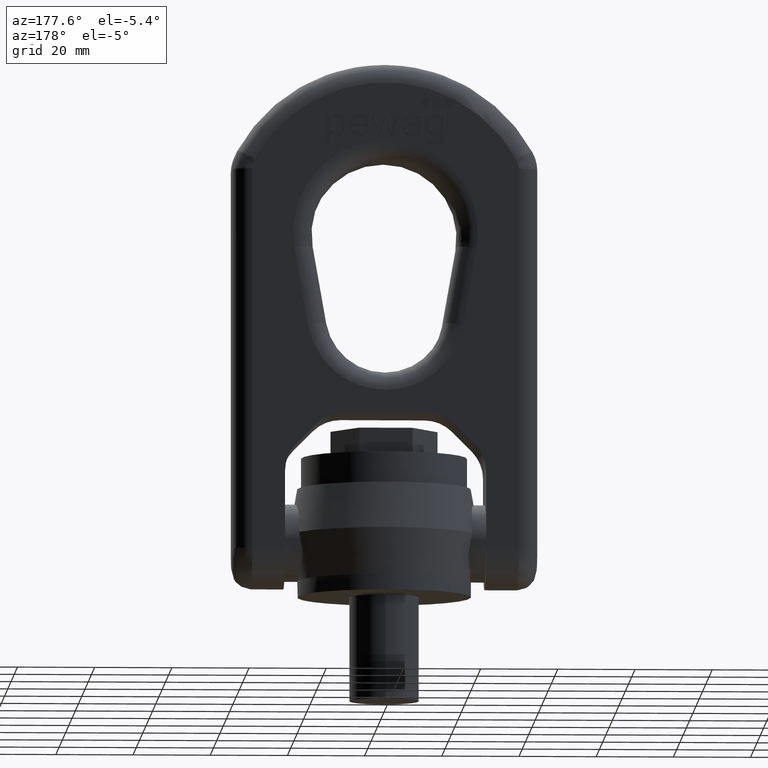
[diagram: clean part render]
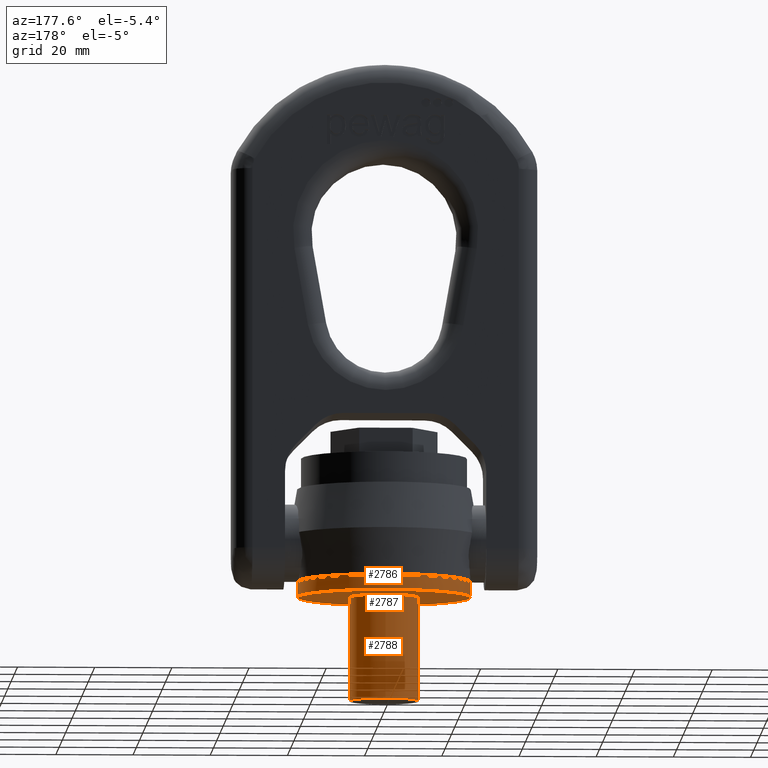
[diagram: same view with one multi-face feature highlighted, each face labeled with its STEP entity id]
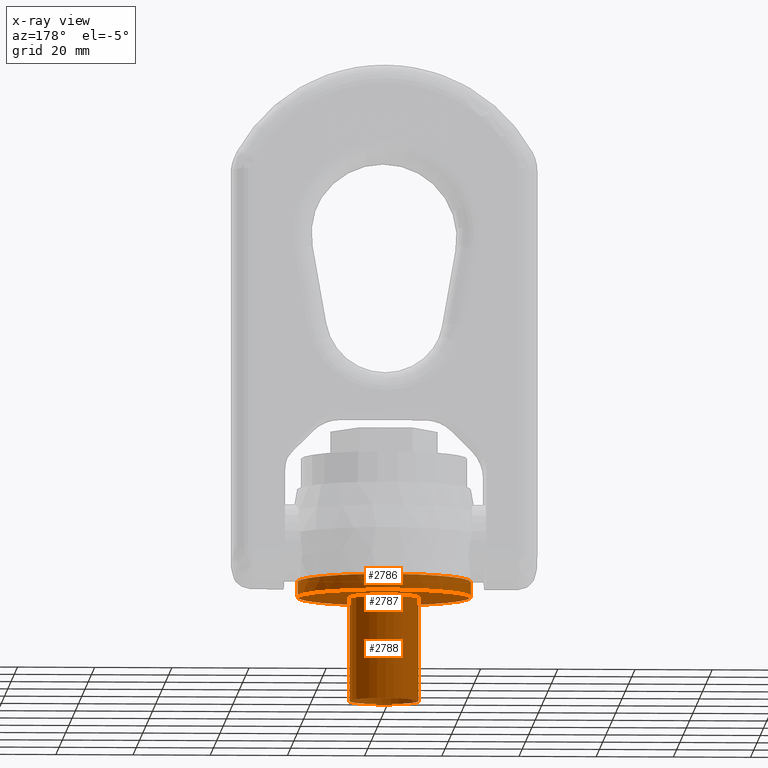
[diagram: x-ray of the same camera — body ghosted, the whole feature saturated]
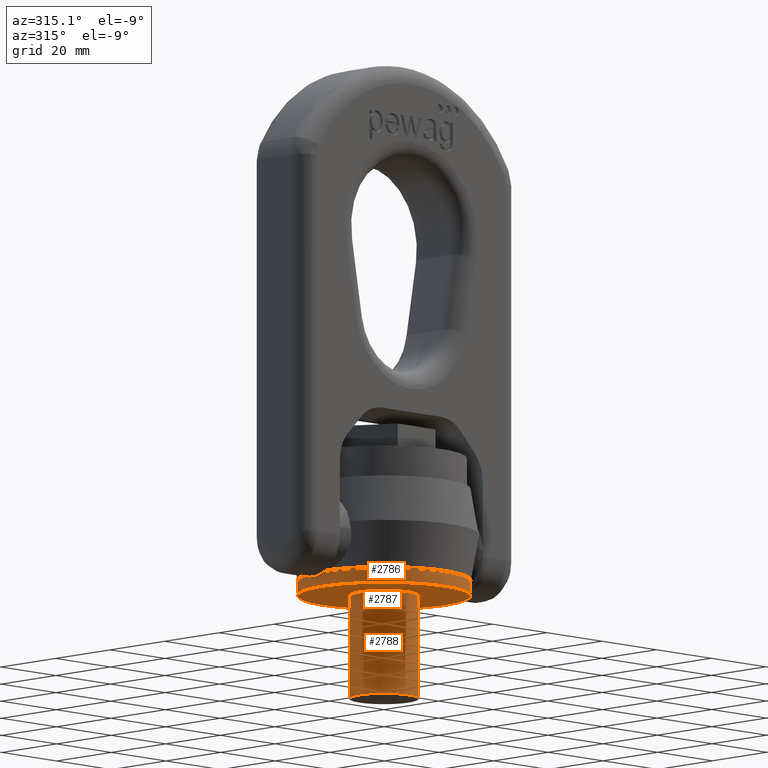
[diagram: same view with one multi-face feature highlighted, each face labeled with its STEP entity id]
A machine part, auxiliary view. The highlighted faces form ONE feature: a stepped (counterbored) hole: 2 coaxial cylindrical walls of radii 9 -> 22.5 mm joined by 1 annular planar shoulder face(s). The faces share edges in the B-rep.
The next image is the same camera in x-ray: the body ghosted and the whole hole feature saturated, so the bore chain is visible through the body.
A second angle (auxiliary view) of the same feature is appended — it is thin or edge-on in the first view.
Their STEP definitions:
[1] entity #2786 (Cylinder):
#2786=ADVANCED_FACE('',(#3069,#3070),#3040,.T.);
#3040=CYLINDRICAL_SURFACE('',#5830,22.5);
#3069=FACE_BOUND('',#3137,.T.);
#3070=FACE_BOUND('',#3138,.T.);
#3137=EDGE_LOOP('',(#3433));
#3138=EDGE_LOOP('',(#3434));
#3433=ORIENTED_EDGE('',*,*,#5117,.T.);
#3434=ORIENTED_EDGE('',*,*,#5118,.F.);
#4697=VERTEX_POINT('',#6938);
#4698=VERTEX_POINT('',#6940);
#5117=EDGE_CURVE('',#4697,#4697,#5749,.T.);
#5118=EDGE_CURVE('',#4698,#4698,#5750,.T.);
#5749=CIRCLE('',#5828,22.5);
#5750=CIRCLE('',#5829,22.5);
#5828=AXIS2_PLACEMENT_3D('',#6937,#6066,#6067);
#5829=AXIS2_PLACEMENT_3D('',#6939,#6068,#6069);
#5830=AXIS2_PLACEMENT_3D('',#6941,#6070,#6071);
#6066=DIRECTION('',(0.,0.,-1.));
#6067=DIRECTION('',(-1.,0.,0.));
#6068=DIRECTION('',(0.,0.,-1.));
#6069=DIRECTION('',(-6.12323399573677E-17,1.,0.));
#6070=DIRECTION('',(0.,0.,-1.));
#6071=DIRECTION('',(-1.,0.,0.));
#6937=CARTESIAN_POINT('',(0.,0.,4.));
#6938=CARTESIAN_POINT('',(-22.5,0.,4.));
#6939=CARTESIAN_POINT('',(0.,0.,0.));
#6940=CARTESIAN_POINT('',(-1.37772764904077E-15,22.5,0.));
#6941=CARTESIAN_POINT('',(0.,0.,4.));
[2] entity #2788 (Cylinder):
#2788=ADVANCED_FACE('',(#3073,#3074),#3041,.T.);
#3041=CYLINDRICAL_SURFACE('',#5834,9.);
#3073=FACE_BOUND('',#3141,.T.);
#3074=FACE_BOUND('',#3142,.T.);
#3141=EDGE_LOOP('',(#3437));
#3142=EDGE_LOOP('',(#3438));
#3437=ORIENTED_EDGE('',*,*,#5120,.F.);
#3438=ORIENTED_EDGE('',*,*,#5119,.T.);
#4699=VERTEX_POINT('',#6943);
#4700=VERTEX_POINT('',#6946);
#5119=EDGE_CURVE('',#4699,#4699,#5751,.T.);
#5120=EDGE_CURVE('',#4700,#4700,#5752,.T.);
#5751=CIRCLE('',#5831,9.);
#5752=CIRCLE('',#5833,9.);
#5831=AXIS2_PLACEMENT_3D('',#6942,#6072,#6073);
#5833=AXIS2_PLACEMENT_3D('',#6945,#6076,#6077);
#5834=AXIS2_PLACEMENT_3D('',#6947,#6078,#6079);
#6072=DIRECTION('',(0.,0.,-1.));
#6073=DIRECTION('',(-6.12323399573677E-17,1.,0.));
#6076=DIRECTION('',(0.,0.,-1.));
#6077=DIRECTION('',(-6.12323399573677E-17,1.,0.));
#6078=DIRECTION('',(0.,0.,1.));
#6079=DIRECTION('',(1.,0.,0.));
#6942=CARTESIAN_POINT('',(0.,0.,0.));
#6943=CARTESIAN_POINT('',(-5.51091059616309E-16,9.,0.));
#6945=CARTESIAN_POINT('',(0.,0.,-27.));
#6946=CARTESIAN_POINT('',(-5.51091059616309E-16,9.,-27.));
#6947=CARTESIAN_POINT('',(0.,0.,-27.));
[3] entity #2787 (Plane):
#2665=PLANE('',#5832);
#2787=ADVANCED_FACE('',(#3071,#3072),#2665,.T.);
#3071=FACE_BOUND('',#3139,.T.);
#3072=FACE_BOUND('',#3140,.T.);
#3139=EDGE_LOOP('',(#3435));
#3140=EDGE_LOOP('',(#3436));
#3435=ORIENTED_EDGE('',*,*,#5119,.F.);
#3436=ORIENTED_EDGE('',*,*,#5118,.T.);
#4698=VERTEX_POINT('',#6940);
#4699=VERTEX_POINT('',#6943);
#5118=EDGE_CURVE('',#4698,#4698,#5750,.T.);
#5119=EDGE_CURVE('',#4699,#4699,#5751,.T.);
#5750=CIRCLE('',#5829,22.5);
#5751=CIRCLE('',#5831,9.);
#5829=AXIS2_PLACEMENT_3D('',#6939,#6068,#6069);
#5831=AXIS2_PLACEMENT_3D('',#6942,#6072,#6073);
#5832=AXIS2_PLACEMENT_3D('',#6944,#6074,#6075);
#6068=DIRECTION('',(0.,0.,-1.));
#6069=DIRECTION('',(-6.12323399573677E-17,1.,0.));
#6072=DIRECTION('',(0.,0.,-1.));
#6073=DIRECTION('',(-6.12323399573677E-17,1.,0.));
#6074=DIRECTION('',(0.,0.,-1.));
#6075=DIRECTION('',(-1.,0.,0.));
#6939=CARTESIAN_POINT('',(0.,0.,0.));
#6940=CARTESIAN_POINT('',(-1.37772764904077E-15,22.5,0.));
#6942=CARTESIAN_POINT('',(0.,0.,0.));
#6943=CARTESIAN_POINT('',(-5.51091059616309E-16,9.,0.));
#6944=CARTESIAN_POINT('',(0.,0.,0.));